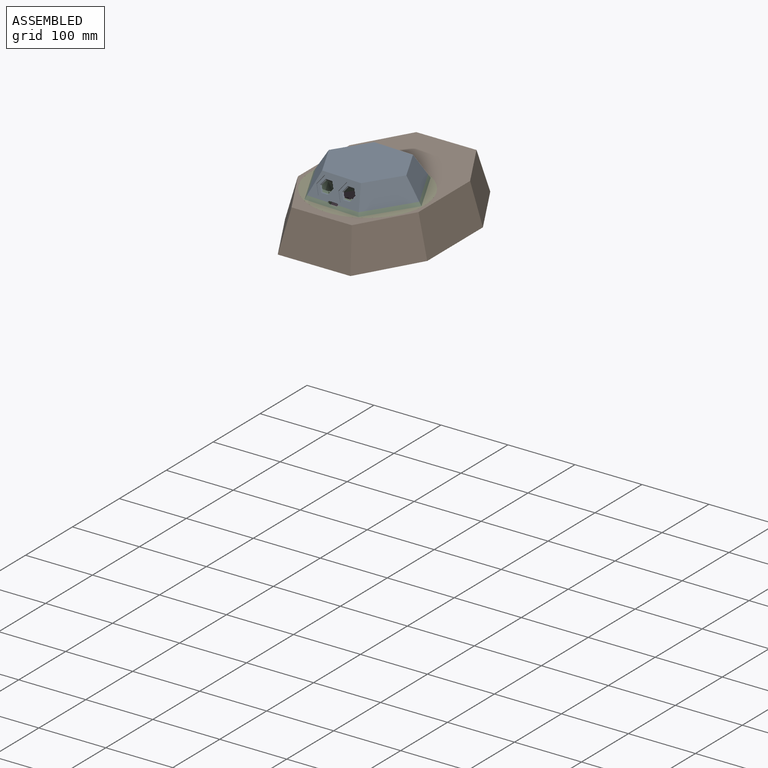
[diagram: assembled view]
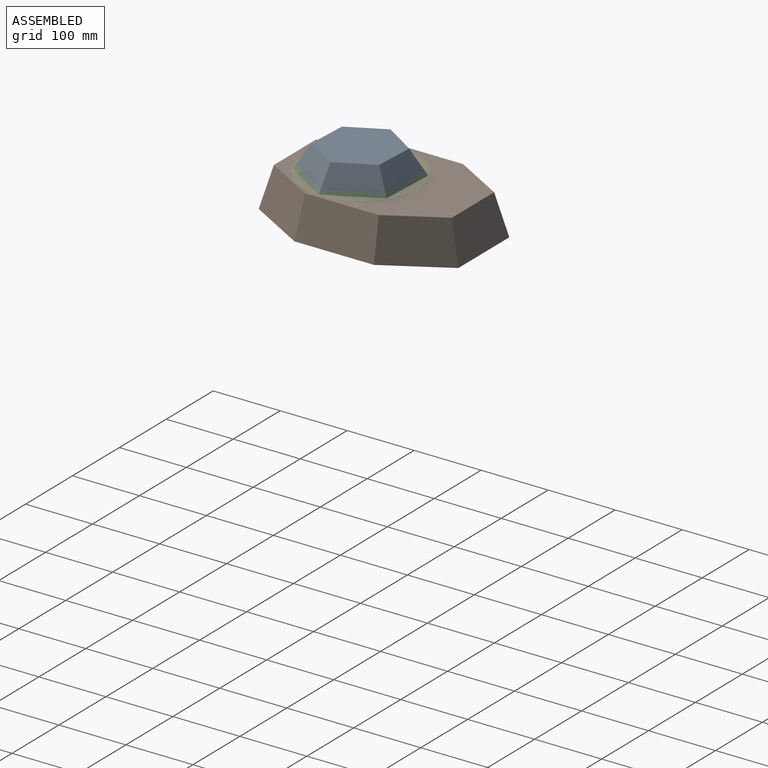
[diagram: assembled view, second angle]
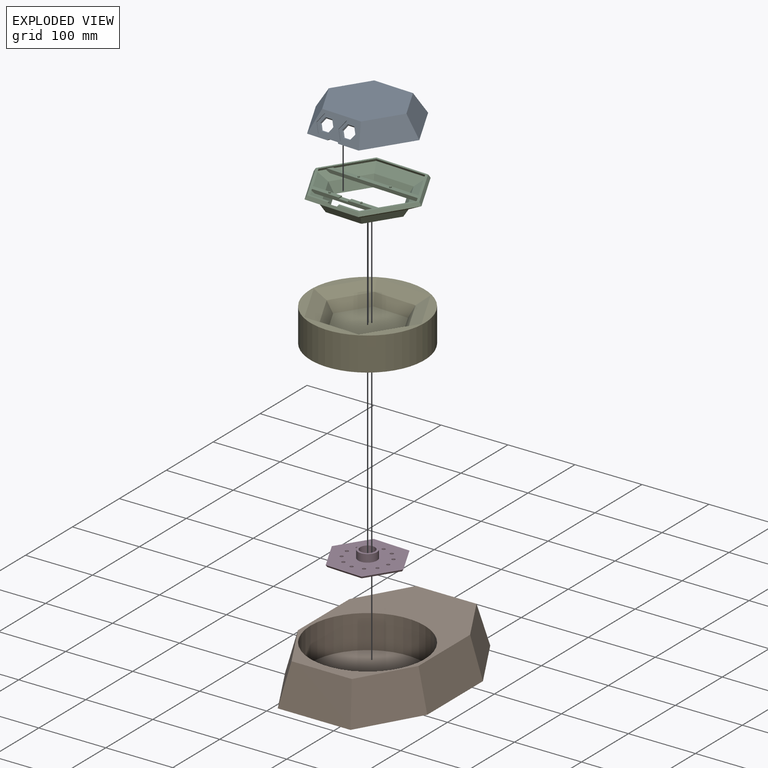
[diagram: exploded view]
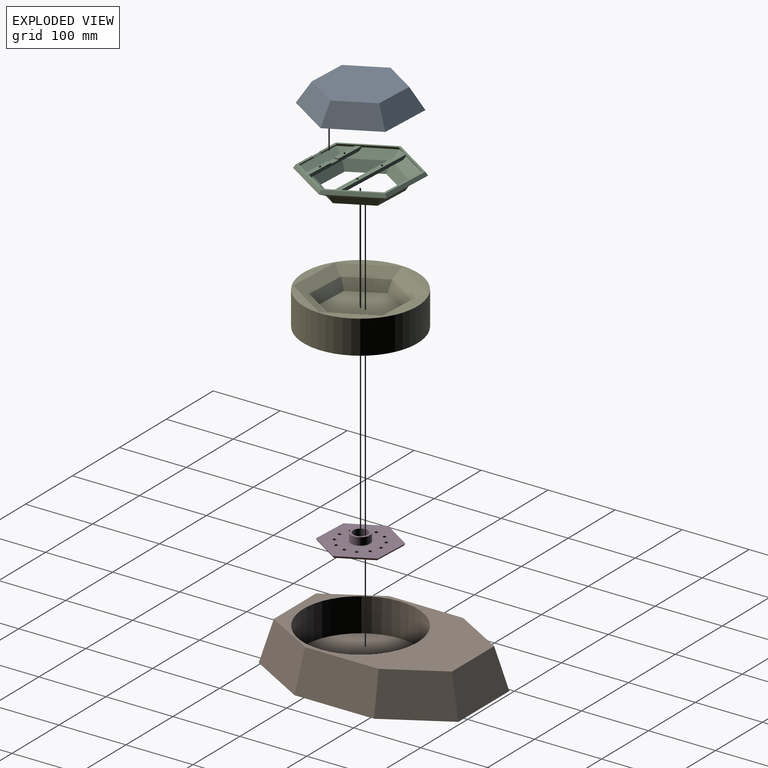
[diagram: exploded view, second angle]
ASSEMBLY  parts=5 mates=4
PART A: 44 faces, bbox 160x138.6x31.5 mm
  f0: plane 80x30mm, normal (0,-0.87,0.5), area 1229mm2, adj f2,f3,f4,f5,f27,f28,f29,f30
  f1: plane 76x27mm, normal (0,0.87,-0.5), area 1667.1mm2, adj f2,f9,f10,f11,f15,f16,f17,f18
  f2: plane 160x138.56mm, normal (0,0,-1), area 1569.5mm2, adj f0,f1,f4,f5,f6,f7,f8,f10
  f3: plane 120x103.92mm, normal (0,0,1), area 9353.1mm2, adj f0,f4,f5,f6,f7,f8
  f4: plane 69.28x50mm, normal (0.75,-0.43,0.5), area 2424.9mm2, adj f0,f2,f3,f8
  f5: plane 69.28x50mm, normal (-0.75,-0.43,0.5), area 2424.9mm2, adj f0,f2,f3,f6
  f6: plane 69.28x50mm, normal (-0.75,0.43,0.5), area 2424.9mm2, adj f2,f3,f5,f7
  f7: plane 80x30mm, normal (0,0.87,0.5), area 2424.9mm2, adj f2,f3,f6,f8
  f8: plane 69.28x50mm, normal (0.75,0.43,0.5), area 2424.9mm2, adj f2,f3,f4,f7
  f9: plane 116x100.46mm, normal (0,0,-1), area 8739.9mm2, adj f1,f10,f11,f12,f13,f14
  f10: plane 65.82x47mm, normal (-0.75,0.43,-0.5), area 2088.9mm2, adj f1,f2,f9,f14
  f11: plane 65.82x47mm, normal (0.75,0.43,-0.5), area 2088.9mm2, adj f1,f2,f9,f12
  f12: plane 65.82x47mm, normal (0.75,-0.43,-0.5), area 2088.9mm2, adj f2,f9,f11,f13
  f13: plane 76x27mm, normal (0,-0.87,-0.5), area 2088.9mm2, adj f2,f9,f12,f14
  f14: plane 65.82x47mm, normal (-0.75,-0.43,-0.5), area 2088.9mm2, adj f2,f9,f10,f13
  f15: plane 8.75x5.83mm, normal (-0.75,-0.65,-0.12), area 22.3mm2, adj f1,f16,f20,f40
  f16: plane 10.33x2mm, normal (0,-0.87,-0.5), area 22.3mm2, adj f1,f15,f17,f40
  f17: plane 8.75x5.83mm, normal (0.75,-0.65,-0.12), area 22.3mm2, adj f1,f16,f18,f40
  f18: plane 7.75x6.21mm, normal (0.75,-0.22,0.62), area 22.3mm2, adj f1,f17,f19,f40
  f19: plane 10.33x2.31mm, normal (0,0,1), area 22.3mm2, adj f1,f18,f20,f40
  f20: plane 7.75x6.21mm, normal (-0.75,-0.22,0.62), area 22.3mm2, adj f1,f15,f19,f40
  f21: plane 7.75x6.21mm, normal (0.75,-0.22,0.62), area 22.3mm2, adj f1,f22,f26,f33
  f22: plane 10.33x2.31mm, normal (0,0,1), area 22.3mm2, adj f1,f21,f23,f33
  f23: plane 7.75x6.21mm, normal (-0.75,-0.22,0.62), area 22.3mm2, adj f1,f22,f24,f33
  f24: plane 8.75x5.83mm, normal (-0.75,-0.65,-0.12), area 22.3mm2, adj f1,f23,f25,f33
  f25: plane 10.33x2mm, normal (0,-0.87,-0.5), area 22.3mm2, adj f1,f24,f26,f33
  f26: plane 8.75x5.83mm, normal (0.75,-0.65,-0.12), area 22.3mm2, adj f1,f21,f25,f33
  f27: plane 11.75x7.5mm, normal (0.87,0.25,0.43), area 15mm2, adj f0,f28,f32,f33
  f28: plane 15x0.87mm, normal (0,0.5,0.87), area 15mm2, adj f0,f27,f29,f33
  f29: plane 11.75x7.5mm, normal (-0.87,0.25,0.43), area 15mm2, adj f0,f28,f30,f33
  f30: plane 11.75x7.5mm, normal (-0.87,-0.25,-0.43), area 15mm2, adj f0,f29,f31,f33
  f31: plane 15x0.87mm, normal (0,-0.5,-0.87), area 15mm2, adj f0,f30,f32,f33
  f32: plane 11.75x7.5mm, normal (0.87,-0.25,-0.43), area 15mm2, adj f0,f27,f31,f33
  f33: plane 30x22.5mm, normal (0,-0.87,0.5), area 307.2mm2, adj f21,f22,f23,f24,f25,f26,f27,f28
  f34: plane 11.75x7.5mm, normal (-0.87,-0.25,-0.43), area 15mm2, adj f0,f35,f39,f40
  f35: plane 15x0.87mm, normal (0,-0.5,-0.87), area 15mm2, adj f0,f34,f36,f40
  f36: plane 11.75x7.5mm, normal (0.87,-0.25,-0.43), area 15mm2, adj f0,f35,f37,f40
  f37: plane 11.75x7.5mm, normal (0.87,0.25,0.43), area 15mm2, adj f0,f36,f38,f40
  f38: plane 15x0.87mm, normal (0,0.5,0.87), area 15mm2, adj f0,f37,f39,f40
  f39: plane 11.75x7.5mm, normal (-0.87,0.25,0.43), area 15mm2, adj f0,f34,f38,f40
  f40: plane 30x22.5mm, normal (0,-0.87,0.5), area 307.2mm2, adj f15,f16,f17,f18,f19,f20,f34,f35
  f41: cylinder r=1.8mm len=3.5mm, axis (0,-0.87,0.5), area 5.6mm2, adj f0,f1,f2,f43
  f42: cylinder r=1.8mm len=3.5mm, axis (0,-0.87,0.5), area 5.6mm2, adj f0,f1,f2,f43
  f43: plane 12x2.6mm, normal (0,-0.5,-0.87), area 36mm2, adj f0,f1,f41,f42
PART B: 12 faces, bbox 212.2x298x60 mm
  f0: plane 118.62x60mm, normal (-0.97,0,0.26), area 7100.4mm2, adj f1,f7,f8,f9
  f1: plane 94.02x61.08mm, normal (-0.84,0.48,0.26), area 6012.6mm2, adj f0,f2,f8,f9
  f2: plane 108.56x60mm, normal (0,0.97,0.26), area 6167.1mm2, adj f1,f3,f8,f9
  f3: plane 94.02x61.08mm, normal (0.84,0.48,0.26), area 6012.6mm2, adj f2,f4,f8,f9
  f4: plane 118.62x60mm, normal (0.97,0,0.26), area 7100.4mm2, adj f3,f5,f8,f9
  f5: plane 94.02x61.08mm, normal (0.84,-0.48,0.26), area 6012.6mm2, adj f4,f6,f8,f9
  f6: plane 108.56x60mm, normal (0,-0.97,0.26), area 6167.1mm2, adj f5,f7,f8,f9
  f7: plane 94.02x61.08mm, normal (-0.84,-0.48,0.26), area 6012.6mm2, adj f0,f6,f8,f9
  f8: plane 298.04x212.15mm, normal (0,0,-1), area 53936.8mm2, adj f0,f1,f2,f3,f4,f5,f6,f7
  f9: plane 265.88x180mm, normal (0,0,1), area 18146.4mm2, adj f0,f1,f2,f3,f4,f5,f6,f7
  f10: cylinder r=85mm len=170mm, axis (0,0,1), area 26703.5mm2, adj f9,f11
  f11: plane 170x170mm, normal (0,0,1), area 22698mm2, adj f10
PART C: 62 faces, bbox 166.7x144.3x28.5 mm
  f0: plane 54.85x35.67mm, normal (0.75,0.43,-0.5), area 822.1mm2, adj f1,f5,f17,f61
  f1: plane 54.85x35.67mm, normal (0.75,-0.43,-0.5), area 822.1mm2, adj f0,f2,f18,f61
  f2: plane 63.33x12mm, normal (0,-0.87,-0.5), area 822.1mm2, adj f1,f3,f19,f61
  f3: plane 54.85x35.67mm, normal (-0.75,-0.43,-0.5), area 822.1mm2, adj f2,f4,f20,f61
  f4: plane 54.85x35.67mm, normal (-0.75,0.43,-0.5), area 822.1mm2, adj f3,f5,f21,f61
  f5: plane 63.33x12mm, normal (0,0.87,-0.5), area 822.1mm2, adj f0,f4,f22,f61
  f6: plane 47.45x7mm, normal (0,0,1), area 311.9mm2, adj f8,f9,f28,f52,f58
  f7: plane 45.85x7mm, normal (0,0,1), area 300.7mm2, adj f8,f9,f26,f50,f59
  f8: plane 110.44x5mm, normal (0,1,0), area 505.8mm2, adj f6,f7,f26,f28,f30,f32,f44,f58
  f9: plane 102.35x5mm, normal (0,-1,0), area 465.3mm2, adj f6,f7,f26,f28,f30,f32,f44,f58
  f10: plane 160x138.56mm, normal (0,0,1), area 1569.5mm2, adj f11,f12,f13,f14,f15,f16,f23,f24
  f11: plane 72.17x43.33mm, normal (0.75,0.43,0.5), area 471.5mm2, adj f10,f12,f16,f17
  f12: plane 83.33x5mm, normal (0,0.87,0.5), area 471.5mm2, adj f10,f11,f13,f22
  f13: plane 72.17x43.33mm, normal (-0.75,0.43,0.5), area 471.5mm2, adj f10,f12,f14,f21
  f14: plane 72.17x43.33mm, normal (-0.75,-0.43,0.5), area 471.5mm2, adj f10,f13,f15,f20
  f15: plane 83.33x5mm, normal (0,-0.87,0.5), area 444.8mm2, adj f10,f14,f16,f19,f41,f42,f43
  f16: plane 72.17x43.33mm, normal (0.75,-0.43,0.5), area 471.5mm2, adj f10,f11,f15,f18
  f17: plane 72.17x51.67mm, normal (0.43,0.25,-0.87), area 1466.7mm2, adj f0,f11,f18,f22
  f18: plane 72.17x51.67mm, normal (0.43,-0.25,-0.87), area 1466.7mm2, adj f1,f16,f17,f19
  f19: plane 83.33x17.32mm, normal (0,-0.5,-0.87), area 1466.7mm2, adj f2,f15,f18,f20
  f20: plane 72.17x51.67mm, normal (-0.43,-0.25,-0.87), area 1466.7mm2, adj f3,f14,f19,f21
  f21: plane 72.17x51.67mm, normal (-0.43,0.25,-0.87), area 1466.7mm2, adj f4,f13,f20,f22
  f22: plane 83.33x17.32mm, normal (0,0.5,-0.87), area 1466.7mm2, adj f5,f12,f17,f21
  f23: plane 68.07x40.6mm, normal (-0.75,-0.43,-0.5), area 336.5mm2, adj f10,f24,f28,f29,f45,f46,f47,f48
  f24: plane 78.6x3.9mm, normal (0,-0.87,-0.5), area 348.3mm2, adj f10,f23,f25,f34
  f25: plane 68.07x40.6mm, normal (0.75,-0.43,-0.5), area 330.5mm2, adj f10,f24,f26,f33,f45,f47,f48
  f26: plane 68.07x40.6mm, normal (0.75,0.43,-0.5), area 330.5mm2, adj f7,f8,f9,f10,f25,f27,f32
  f27: plane 78.6x3.9mm, normal (0,0.87,-0.5), area 295.8mm2, adj f10,f26,f28,f31,f41,f42,f43
  f28: plane 68.07x40.6mm, normal (-0.75,0.43,-0.5), area 330.5mm2, adj f6,f8,f9,f10,f23,f27,f30
  f29: plane 68.07x48.2mm, normal (-0.43,-0.25,0.87), area 1194.3mm2, adj f23,f30,f34,f35,f46,f47,f48,f49
  f30: plane 68.07x48.2mm, normal (-0.43,0.25,0.87), area 1190.8mm2, adj f8,f9,f28,f29,f31,f36,f44
  f31: plane 78.6x15.42mm, normal (0,0.5,0.87), area 1240.9mm2, adj f27,f30,f32,f37
  f32: plane 68.07x48.2mm, normal (0.43,0.25,0.87), area 1190.8mm2, adj f8,f9,f26,f31,f33,f38,f44
  f33: plane 68.07x48.2mm, normal (0.43,-0.25,0.87), area 1190.8mm2, adj f25,f32,f34,f39,f47,f48,f49
  f34: plane 78.6x15.42mm, normal (0,-0.5,0.87), area 1240.9mm2, adj f24,f29,f33,f40
  f35: plane 52.65x35.13mm, normal (-0.75,-0.43,0.5), area 919mm2, adj f29,f36,f40,f61
  f36: plane 52.65x35.13mm, normal (-0.75,0.43,0.5), area 919mm2, adj f30,f35,f37,f61
  f37: plane 60.8x14.2mm, normal (0,0.87,0.5), area 919mm2, adj f31,f36,f38,f61
  f38: plane 52.65x35.13mm, normal (0.75,0.43,0.5), area 919mm2, adj f32,f37,f39,f61
  f39: plane 52.65x35.13mm, normal (0.75,-0.43,0.5), area 919mm2, adj f33,f38,f40,f61
  f40: plane 60.8x14.2mm, normal (0,-0.87,0.5), area 919mm2, adj f34,f35,f39,f61
  f41: cylinder r=1.8mm len=4.56mm, axis (0,-0.87,0.5), area 11.4mm2, adj f10,f15,f27,f42
  f42: plane 12x2.6mm, normal (0,0.5,0.87), area 36mm2, adj f15,f27,f41,f43
  f43: cylinder r=1.8mm len=4.56mm, axis (0,-0.87,0.5), area 11.4mm2, adj f10,f15,f27,f42
  f44: plane 98.04x7mm, normal (0,0,-1), area 658mm2, adj f8,f9,f30,f32
  f45: plane 142.54x7mm, normal (0,0,1), area 957.2mm2, adj f23,f25,f47,f48,f54,f56
  f46: plane 7x3.53mm, normal (0.89,0.45,0), area 6.7mm2, adj f23,f29,f47,f48
  f47: plane 136.83x5mm, normal (0,1,0), area 663.3mm2, adj f23,f25,f29,f33,f45,f46,f49
  f48: plane 144.4x5mm, normal (0,-1,0), area 703.3mm2, adj f23,f25,f29,f33,f45,f46,f49
  f49: plane 132.69x7mm, normal (0,0,-1), area 900.5mm2, adj f29,f33,f47,f48
  f50: cylinder r=1.4mm len=2.8mm, axis (0,0,-1), area 17.6mm2, adj f7,f51
  f51: plane 2.8x2.8mm, normal (0,0,1), area 6.2mm2, adj f50
  f52: cylinder r=1.4mm len=2.8mm, axis (0,0,-1), area 17.6mm2, adj f6,f53
  f53: plane 2.8x2.8mm, normal (0,0,1), area 6.2mm2, adj f52
  f54: cylinder r=1.4mm len=2.8mm, axis (0,0,-1), area 17.6mm2, adj f45,f55
  f55: plane 2.8x2.8mm, normal (0,0,1), area 6.2mm2, adj f54
  f56: cylinder r=1.4mm len=2.8mm, axis (0,0,-1), area 17.6mm2, adj f45,f57
  f57: plane 2.8x2.8mm, normal (0,0,1), area 6.2mm2, adj f56
  f58: plane 7x1.7mm, normal (-1,0,0), area 11.9mm2, adj f6,f8,f9,f60
  f59: plane 7x1.7mm, normal (1,0,0), area 11.9mm2, adj f7,f8,f9,f60
  f60: plane 14.6x7mm, normal (0,0,1), area 102.2mm2, adj f8,f9,f58,f59
  f61: plane 110.67x95.84mm, normal (0,0,-1), area 1108.5mm2, adj f0,f1,f2,f3,f4,f5,f35,f36
PART D: 24 faces, bbox 110.7x95.8x14.5 mm
  f0: plane 102.67x88.91mm, normal (0,0,1), area 5994.8mm2, adj f1,f9,f10,f11,f12,f13,f14,f15
  f1: plane 110.67x95.84mm, normal (0,0,1), area 1108.5mm2, adj f0,f3,f4,f5,f6,f7,f8
  f2: plane 106.67x92.38mm, normal (0,0,-1), area 6774.3mm2, adj f3,f4,f5,f6,f7,f8,f9,f10
  f3: plane 55.33x3mm, normal (0,0.87,-0.5), area 188.2mm2, adj f1,f2,f4,f8
  f4: plane 47.92x28.67mm, normal (-0.75,0.43,-0.5), area 188.2mm2, adj f1,f2,f3,f5
  f5: plane 47.92x28.67mm, normal (-0.75,-0.43,-0.5), area 188.2mm2, adj f1,f2,f4,f6
  f6: plane 55.33x3mm, normal (0,-0.87,-0.5), area 188.2mm2, adj f1,f2,f5,f7
  f7: plane 47.92x28.67mm, normal (0.75,-0.43,-0.5), area 188.2mm2, adj f1,f2,f6,f8
  f8: plane 47.92x28.67mm, normal (0.75,0.43,-0.5), area 188.2mm2, adj f1,f2,f3,f7
  f9: cylinder r=2.5mm len=5mm, axis (0,0,-1), area 47.1mm2, adj f0,f2
  f10: cylinder r=2.5mm len=5mm, axis (0,0,-1), area 47.1mm2, adj f0,f2
  f11: cylinder r=2.5mm len=5mm, axis (0,0,-1), area 47.1mm2, adj f0,f2
  f12: cylinder r=2.5mm len=5mm, axis (0,0,-1), area 47.1mm2, adj f0,f2
  f13: cylinder r=2.5mm len=5mm, axis (0,0,-1), area 47.1mm2, adj f0,f2
  f14: cylinder r=2.5mm len=5mm, axis (0,0,-1), area 47.1mm2, adj f0,f2
  f15: cylinder r=2.5mm len=5mm, axis (0,0,-1), area 47.1mm2, adj f0,f2
  f16: cylinder r=2.5mm len=5mm, axis (0,0,-1), area 47.1mm2, adj f0,f2
  f17: cylinder r=2.5mm len=5mm, axis (0,0,-1), area 47.1mm2, adj f0,f2
  f18: cylinder r=2.5mm len=5mm, axis (0,0,-1), area 47.1mm2, adj f0,f2
  f19: cylinder r=2.5mm len=5mm, axis (0,0,-1), area 47.1mm2, adj f0,f2
  f20: cylinder r=2.5mm len=5mm, axis (0,0,-1), area 47.1mm2, adj f0,f2
  f21: cylinder r=11mm len=22mm, axis (0,0,-1), area 1002.2mm2, adj f2,f23
  f22: cylinder r=14mm len=28mm, axis (0,0,-1), area 1011.6mm2, adj f0,f23
  f23: plane 28x28mm, normal (0,0,1), area 235.6mm2, adj f21,f22
PART E: 16 faces, bbox 170x170x50 mm
  f0: plane 170x170mm, normal (0,0,1), area 4655.8mm2, adj f1,f3,f4,f5,f6,f7,f8
  f1: cylinder r=85mm len=170mm, axis (0,0,1), area 26703.5mm2, adj f0,f2
  f2: plane 170x170mm, normal (0,0,-1), area 22698mm2, adj f1
  f3: plane 72.17x51.67mm, normal (-0.43,-0.25,0.87), area 1466.7mm2, adj f0,f4,f8,f9
  f4: plane 72.17x51.67mm, normal (-0.43,0.25,0.87), area 1466.7mm2, adj f0,f3,f5,f10
  f5: plane 83.33x17.32mm, normal (0,0.5,0.87), area 1466.7mm2, adj f0,f4,f6,f11
  f6: plane 72.17x51.67mm, normal (0.43,0.25,0.87), area 1466.7mm2, adj f0,f5,f7,f12
  f7: plane 72.17x51.67mm, normal (0.43,-0.25,0.87), area 1466.7mm2, adj f0,f6,f8,f13
  f8: plane 83.33x17.32mm, normal (0,-0.5,0.87), area 1466.7mm2, adj f0,f3,f7,f14
  f9: plane 54.85x36.67mm, normal (-0.75,-0.43,0.5), area 1010.4mm2, adj f3,f10,f14,f15
  f10: plane 54.85x36.67mm, normal (-0.75,0.43,0.5), area 1010.4mm2, adj f4,f9,f11,f15
  f11: plane 63.33x15mm, normal (0,0.87,0.5), area 1010.4mm2, adj f5,f10,f12,f15
  f12: plane 54.85x36.67mm, normal (0.75,0.43,0.5), area 1010.4mm2, adj f6,f11,f13,f15
  f13: plane 54.85x36.67mm, normal (0.75,-0.43,0.5), area 1010.4mm2, adj f7,f12,f14,f15
  f14: plane 63.33x15mm, normal (0,-0.87,0.5), area 1010.4mm2, adj f8,f9,f13,f15
  f15: plane 106.67x92.38mm, normal (0,0,1), area 7390.1mm2, adj f9,f10,f11,f12,f13,f14
PLACE A rot(axis=(0,0,-1),2.8deg) t=(68.14,117.92,30.5)mm
PLACE B t=(68.14,117.92,30.5)mm fixed
PLACE C rot(axis=(0,0,-1),2.8deg) t=(68.14,117.92,30.5)mm
PLACE D rot(axis=(0,0,-1),2.8deg) t=(68.14,117.92,30.5)mm
PLACE E rot(axis=(0,0,-1),2.8deg) t=(68.14,117.92,30.5)mm
MATE fastened D.f21 <-> C.f61  axis (0,0,1) through (68.14,117.92,3.5)mm
MATE fastened E.f1 <-> D.f21  axis (0,0,1) through (68.14,117.92,0.5)mm
MATE fastened C.f57 <-> A.f2  axis (0,0,1) through (68.25,120.14,30.5)mm
MATE revolute E.f1 <-> B.f10  axis (0,0,-1) through (68.14,117.92,-24.5)mm
